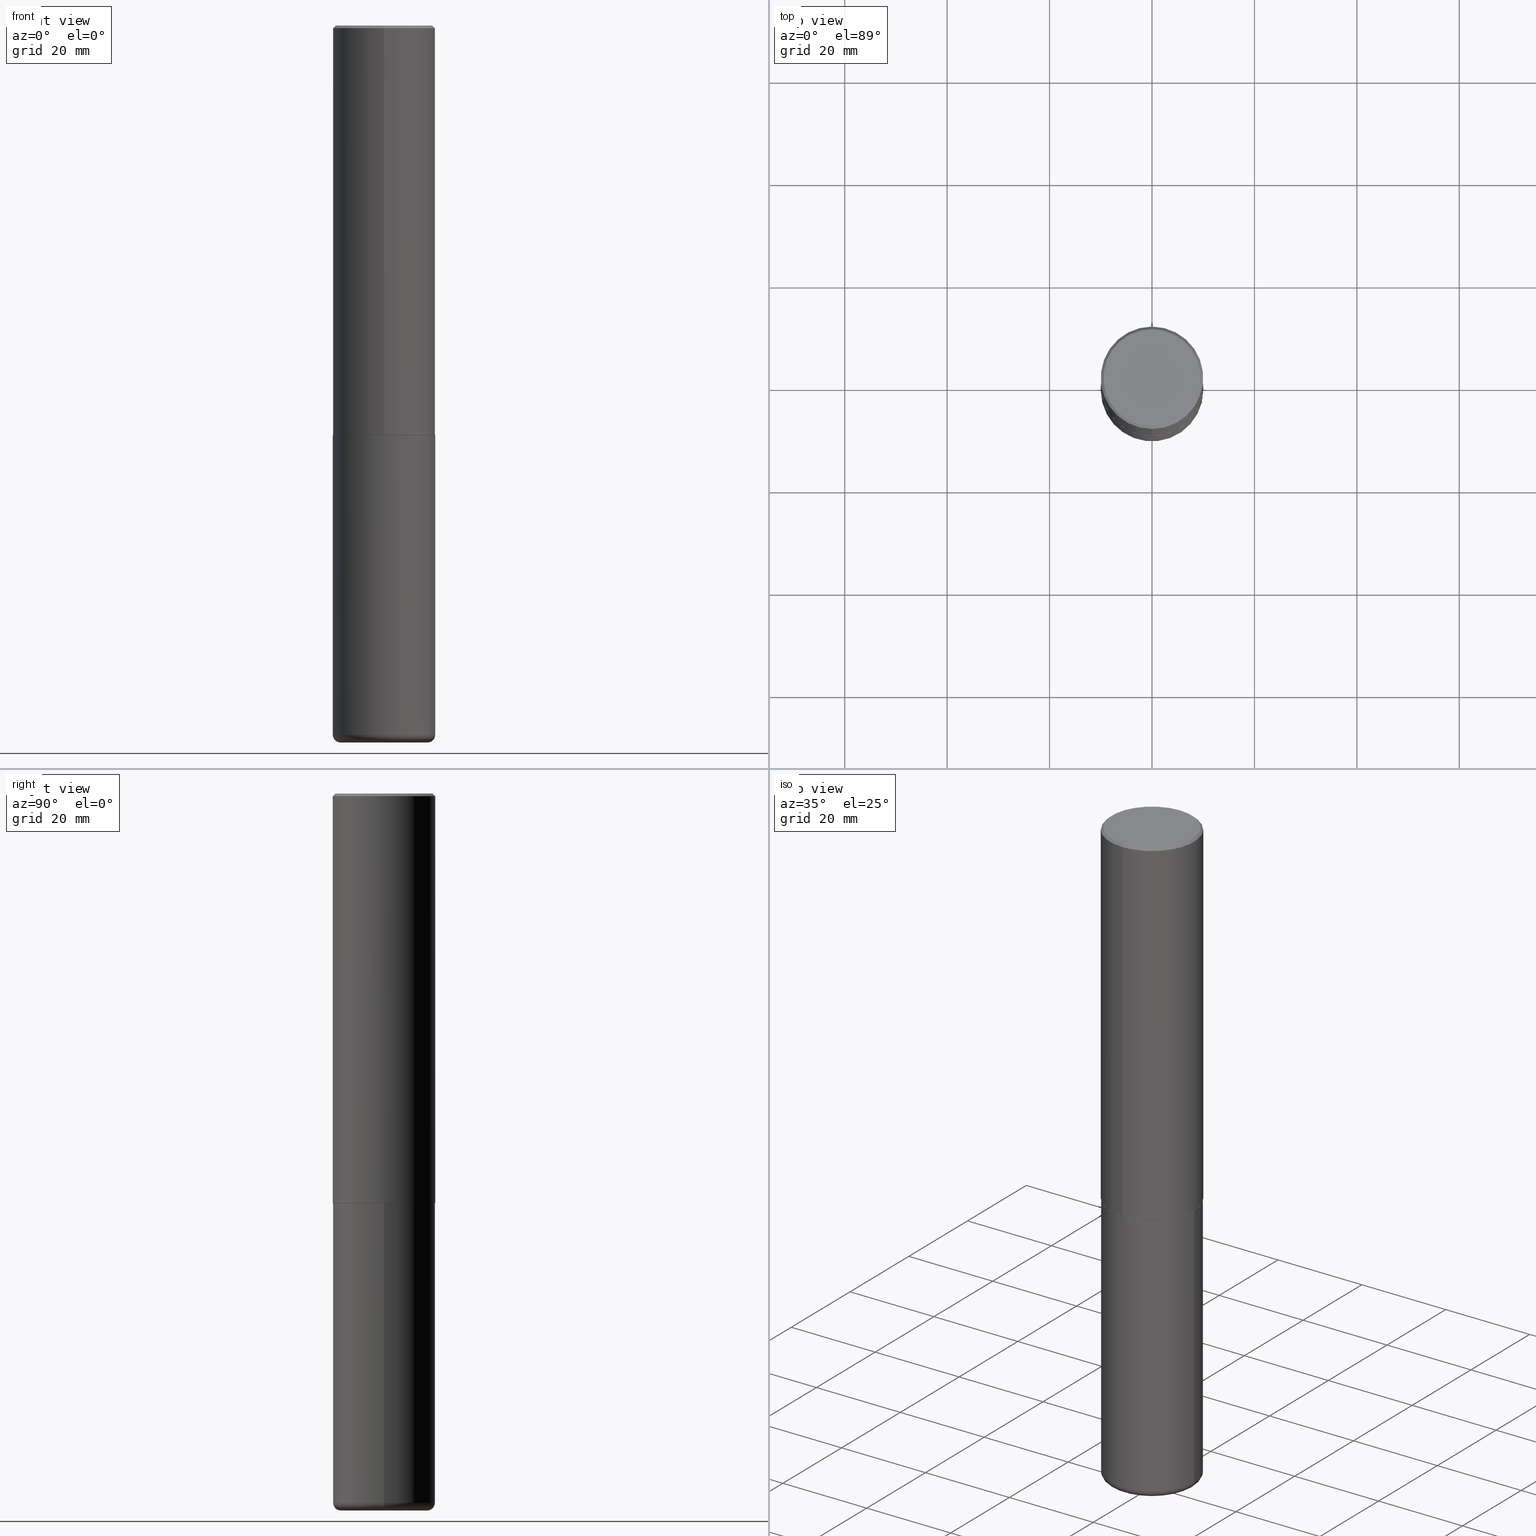
[diagram: canonical four-view strip — front | top / right | iso, engineering-drawing reading convention]
A machine part, canonical four-view strip (front | top / right | iso — engineering-drawing reading convention). The complete STEP part file that produces these views, byte-faithful:
ISO-10303-21;
HEADER;
FILE_DESCRIPTION (( 'STEP AP203' ),
    '1' );
FILE_NAME ('47589.STEP',
    '2024-03-06T19:41:54',
    ( '' ),
    ( '' ),
    'SwSTEP 2.0',
    'SolidWorks 2023',
    '' );
FILE_SCHEMA (( 'CONFIG_CONTROL_DESIGN' ));
ENDSEC;

DATA;
#1 = LINE ( 'NONE', #126, #356 ) ;
#2 = APPROVAL ( #5, 'UNSPECIFIED' ) ;
#3 = PLANE ( 'NONE',  #313 ) ;
#4 = EDGE_LOOP ( 'NONE', ( #366, #401, #348, #192 ) ) ;
#5 = APPROVAL_STATUS ( 'not_yet_approved' ) ;
#6 = ORIENTED_EDGE ( 'NONE', *, *, #282, .T. ) ;
#7 = ADVANCED_FACE ( 'NONE', ( #215 ), #346, .T. ) ;
#8 = CARTESIAN_POINT ( 'NONE',  ( 0.000000000000000000, 0.000000000000000000, 0.000000000000000000 ) ) ;
#9 = ORIENTED_EDGE ( 'NONE', *, *, #282, .F. ) ;
#10 = PERSON_AND_ORGANIZATION_ROLE ( 'creator' ) ;
#11 = ORIENTED_EDGE ( 'NONE', *, *, #408, .F. ) ;
#12 = APPROVAL_STATUS ( 'not_yet_approved' ) ;
#13 = APPLICATION_PROTOCOL_DEFINITION ( 'international standard', 'config_control_design', 1994, #37 ) ;
#14 = CYLINDRICAL_SURFACE ( 'NONE', #323, 0.3936999999999999389 ) ;
#15 = CONICAL_SURFACE ( 'NONE', #101, 0.3926999999999999380, 0.7853981633979947308 ) ;
#16 = APPLICATION_CONTEXT ( 'configuration controlled 3d designs of mechanical parts and assemblies' ) ;
#17 = LINE ( 'NONE', #79, #33 ) ;
#18 = CARTESIAN_POINT ( 'NONE',  ( 2.797406750687554229E-15, 0.3936999999999892808, -3.148600000000001398 ) ) ;
#19 = EDGE_CURVE ( 'NONE', #239, #225, #17, .T. ) ;
#20 = CARTESIAN_POINT ( 'NONE',  ( 4.895242379836416489E-31, -6.976798005662675704E-17, -0.02000000000000007327 ) ) ;
#21 = VECTOR ( 'NONE', #245, 39.37007874015748143 ) ;
#22 = AXIS2_PLACEMENT_3D ( 'NONE', #156, #309, #279 ) ;
#23 = LINE ( 'NONE', #281, #317 ) ;
#24 = ADVANCED_FACE ( 'NONE', ( #151 ), #343, .T. ) ;
#25 = CARTESIAN_POINT ( 'NONE',  ( 7.709027699766357669E-29, -1.098706149931754028E-14, -3.149599999999999067 ) ) ;
#26 = ADVANCED_FACE ( 'NONE', ( #73 ), #14, .T. ) ;
#27 = CARTESIAN_POINT ( 'NONE',  ( 0.3936999999999999389, -1.374596203102545395E-14, -3.149599999999999511 ) ) ;
#28 = CYLINDRICAL_SURFACE ( 'NONE', #402, 0.3936999999999999389 ) ;
#29 = FACE_OUTER_BOUND ( 'NONE', #44, .T. ) ;
#30 = DIRECTION ( 'NONE',  ( 1.000000000000000000, -6.982962677686266711E-15, 4.876176775795935793E-29 ) ) ;
#31 = EDGE_CURVE ( 'NONE', #46, #320, #360, .T. ) ;
#32 = EDGE_LOOP ( 'NONE', ( #332, #49 ) ) ;
#33 = VECTOR ( 'NONE', #235, 39.37007874015748143 ) ;
#34 = CARTESIAN_POINT ( 'NONE',  ( 1.333440775948569289E-28, -1.903800029631001838E-14, -5.452699999999999214 ) ) ;
#35 = DIMENSIONAL_EXPONENTS ( 1.000000000000000000, 0.000000000000000000, 0.000000000000000000, 0.000000000000000000, 0.000000000000000000, 0.000000000000000000, 0.000000000000000000 ) ;
#36 = CIRCLE ( 'NONE', #383, 0.3736999999999999211 ) ;
#37 = APPLICATION_CONTEXT ( 'configuration controlled 3d designs of mechanical parts and assemblies' ) ;
#38 = DIRECTION ( 'NONE',  ( -2.445468806185136597E-29, 3.491481338843145583E-15, 1.000000000000000000 ) ) ;
#39 = ORIENTED_EDGE ( 'NONE', *, *, #249, .T. ) ;
#40 = CARTESIAN_POINT ( 'NONE',  ( 0.000000000000000000, 0.000000000000000000, 0.000000000000000000 ) ) ;
#41 = CARTESIAN_POINT ( 'NONE',  ( 1.347893496593123646E-28, -1.924434684343564878E-14, -5.511800000000000033 ) ) ;
#42 = EDGE_LOOP ( 'NONE', ( #265, #396, #394, #102 ) ) ;
#43 = SECURITY_CLASSIFICATION_LEVEL ( 'unclassified' ) ;
#44 = EDGE_LOOP ( 'NONE', ( #188, #139 ) ) ;
#45 = AXIS2_PLACEMENT_3D ( 'NONE', #161, #288, #417 ) ;
#46 = VERTEX_POINT ( 'NONE', #331 ) ;
#47 = DESIGN_CONTEXT ( 'detailed design', #37, 'design' ) ;
#48 = APPROVAL_DATE_TIME ( #240, #2 ) ;
#49 = ORIENTED_EDGE ( 'NONE', *, *, #56, .F. ) ;
#50 = DIRECTION ( 'NONE',  ( 1.000000000000000000, -6.982962677686269866E-15, 0.000000000000000000 ) ) ;
#51 = FACE_OUTER_BOUND ( 'NONE', #32, .T. ) ;
#52 = MANIFOLD_SOLID_BREP ( 'Body-Move/Copy2[1]', #205 ) ;
#53 = CARTESIAN_POINT ( 'NONE',  ( 1.333440775948569289E-28, -1.903800029631001838E-14, -5.452699999999999214 ) ) ;
#54 = AXIS2_PLACEMENT_3D ( 'NONE', #248, #382, #413 ) ;
#55 = DIRECTION ( 'NONE',  ( 6.982962677686265133E-15, 1.000000000000000000, -3.491137977679279029E-15 ) ) ;
#56 = EDGE_CURVE ( 'NONE', #78, #92, #60, .T. ) ;
#57 = CARTESIAN_POINT ( 'NONE',  ( 7.709027699766357669E-29, -1.098706149931754028E-14, -3.149599999999999067 ) ) ;
#58 = DIRECTION ( 'NONE',  ( -2.447621189918199031E-29, 3.488399002831325748E-15, 1.000000000000000000 ) ) ;
#59 = ORIENTED_EDGE ( 'NONE', *, *, #176, .T. ) ;
#60 = CIRCLE ( 'NONE', #178, 0.3346000000000000085 ) ;
#61 = AXIS2_PLACEMENT_3D ( 'NONE', #20, #153, #376 ) ;
#62 = DIRECTION ( 'NONE',  ( -6.982962677686265133E-15, -1.000000000000000000, 3.488399002831325748E-15 ) ) ;
#63 = EDGE_LOOP ( 'NONE', ( #275, #163, #6, #201 ) ) ;
#64 = CC_DESIGN_DATE_AND_TIME_ASSIGNMENT ( #140, #369, ( #96 ) ) ;
#65 = DIRECTION ( 'NONE',  ( -2.447621189918199031E-29, 3.488399002831325748E-15, 1.000000000000000000 ) ) ;
#66 = PRODUCT_DEFINITION_SHAPE ( 'NONE', 'NONE',  #158 ) ;
#67 = DIRECTION ( 'NONE',  ( 2.447621189918199031E-29, -3.488399002831325748E-15, -1.000000000000000000 ) ) ;
#68 = EDGE_LOOP ( 'NONE', ( #59, #374 ) ) ;
#69 = DIRECTION ( 'NONE',  ( -2.447621189918198751E-29, 3.488399002831325748E-15, 1.000000000000000000 ) ) ;
#70 = CIRCLE ( 'NONE', #76, 0.3346000000000000085 ) ;
#71 = EDGE_CURVE ( 'NONE', #388, #172, #134, .T. ) ;
#72 = ORIENTED_EDGE ( 'NONE', *, *, #375, .F. ) ;
#73 = FACE_OUTER_BOUND ( 'NONE', #329, .T. ) ;
#74 = PERSON_AND_ORGANIZATION ( #409, #113 ) ;
#75 = AXIS2_PLACEMENT_3D ( 'NONE', #25, #80, #350 ) ;
#76 = AXIS2_PLACEMENT_3D ( 'NONE', #319, #321, #99 ) ;
#77 = EDGE_CURVE ( 'NONE', #46, #172, #184, .T. ) ;
#78 = VERTEX_POINT ( 'NONE', #89 ) ;
#79 = CARTESIAN_POINT ( 'NONE',  ( -2.742209443527319105E-15, -0.3927000000000109292, -3.149599999999997291 ) ) ;
#80 = DIRECTION ( 'NONE',  ( -2.447621189918199031E-29, 3.488399002831325748E-15, 1.000000000000000000 ) ) ;
#81 = APPROVAL ( #12, 'UNSPECIFIED' ) ;
#82 = AXIS2_PLACEMENT_3D ( 'NONE', #380, #244, #84 ) ;
#83 = CC_DESIGN_APPROVAL ( #2, ( #158 ) ) ;
#84 = DIRECTION ( 'NONE',  ( -6.982962677686265133E-15, -1.000000000000000000, 3.491137977679279029E-15 ) ) ;
#85 = DIRECTION ( 'NONE',  ( -6.982962677686265133E-15, -1.000000000000000000, 3.488399002831325748E-15 ) ) ;
#86 = CC_DESIGN_PERSON_AND_ORGANIZATION_ASSIGNMENT ( #300, #334, ( #327 ) ) ;
#87 = DIRECTION ( 'NONE',  ( 2.447621189918199031E-29, -3.488399002831325748E-15, -1.000000000000000000 ) ) ;
#88 = LOCAL_TIME ( 14, 41, 54.00000000000000000, #144 ) ;
#89 = CARTESIAN_POINT ( 'NONE',  ( -0.3346000000000000085, -1.655373219760243052E-14, -5.511800000000000033 ) ) ;
#90 = DIRECTION ( 'NONE',  ( -2.445468806185136597E-29, 3.491481338843145583E-15, 1.000000000000000000 ) ) ;
#91 = CARTESIAN_POINT ( 'NONE',  ( 7.702248551960704469E-29, -1.099676962482037073E-14, -3.149599999999999511 ) ) ;
#92 = VERTEX_POINT ( 'NONE', #314 ) ;
#93 = EDGE_CURVE ( 'NONE', #262, #239, #255, .T. ) ;
#94 = AXIS2_PLACEMENT_3D ( 'NONE', #212, #217, #180 ) ;
#95 = CARTESIAN_POINT ( 'NONE',  ( 2.749192406205084005E-15, 0.3937000000000000499, -0.02000000000000144718 ) ) ;
#96 = SECURITY_CLASSIFICATION ( '', '', #43 ) ;
#97 = PLANE ( 'NONE',  #170 ) ;
#98 = ADVANCED_FACE ( 'NONE', ( #310 ), #183, .T. ) ;
#99 = DIRECTION ( 'NONE',  ( 1.000000000000000000, -6.982962677686269866E-15, 0.000000000000000000 ) ) ;
#100 = PERSON_AND_ORGANIZATION ( #409, #113 ) ;
#101 = AXIS2_PLACEMENT_3D ( 'NONE', #250, #110, #182 ) ;
#102 = ORIENTED_EDGE ( 'NONE', *, *, #228, .T. ) ;
#103 = CALENDAR_DATE ( 2024, 6, 3 ) ;
#104 = EDGE_LOOP ( 'NONE', ( #166, #160, #269, #143 ) ) ;
#105 = LENGTH_MEASURE_WITH_UNIT ( LENGTH_MEASURE( 0.02539999999999999897 ), #362 );
#106 = LOCAL_TIME ( 14, 41, 54.00000000000000000, #268 ) ;
#107 = DATE_AND_TIME ( #365, #280 ) ;
#108 = PRODUCT_RELATED_PRODUCT_CATEGORY ( 'detail', '', ( #416 ) ) ;
#109 = CARTESIAN_POINT ( 'NONE',  ( 7.706580078576441267E-29, -1.098357310031471265E-14, -3.148600000000000065 ) ) ;
#110 = DIRECTION ( 'NONE',  ( -2.447621189918199031E-29, 3.488399002831325748E-15, 1.000000000000000000 ) ) ;
#111 = AXIS2_PLACEMENT_3D ( 'NONE', #347, #200, #335 ) ;
#112 = CIRCLE ( 'NONE', #352, 0.3936999999999999389 ) ;
#113 = ORGANIZATION ( 'UNSPECIFIED', 'UNSPECIFIED', '' ) ;
#114 = DIRECTION ( 'NONE',  ( 1.000000000000000000, -6.982962677686264344E-15, 4.883557194083112340E-29 ) ) ;
#115 = CARTESIAN_POINT ( 'NONE',  ( 2.793854037008791591E-15, 0.3926999999999889468, -3.149600000000000843 ) ) ;
#116 = APPROVAL ( #330, 'UNSPECIFIED' ) ;
#117 = ORIENTED_EDGE ( 'NONE', *, *, #364, .F. ) ;
#118 = DIRECTION ( 'NONE',  ( -6.982962677686265922E-15, -1.000000000000000000, 4.163344669033672479E-15 ) ) ;
#119 = CIRCLE ( 'NONE', #45, 0.3937000000000000499 ) ;
#120 = APPROVAL_PERSON_ORGANIZATION ( #342, #2, #135 ) ;
#121 = LINE ( 'NONE', #227, #226 ) ;
#122 = DIRECTION ( 'NONE',  ( -6.982962677686265922E-15, -1.000000000000000000, 3.488399002831325748E-15 ) ) ;
#123 = FACE_OUTER_BOUND ( 'NONE', #68, .T. ) ;
#124 = EDGE_LOOP ( 'NONE', ( #232, #399, #207, #128 ) ) ;
#125 = CIRCLE ( 'NONE', #377, 0.05910000000000019404 ) ;
#126 = CARTESIAN_POINT ( 'NONE',  ( 2.749192406205084005E-15, 0.3937000000000000499, -0.02000000000000144718 ) ) ;
#127 = AXIS2_PLACEMENT_3D ( 'NONE', #40, #174, #345 ) ;
#128 = ORIENTED_EDGE ( 'NONE', *, *, #228, .F. ) ;
#129 = EDGE_CURVE ( 'NONE', #223, #392, #371, .T. ) ;
#130 = DIRECTION ( 'NONE',  ( 1.000000000000000000, -6.982962677686264344E-15, 4.883557194083112340E-29 ) ) ;
#131 = VERTEX_POINT ( 'NONE', #407 ) ;
#132 = CALENDAR_DATE ( 2024, 6, 3 ) ;
#133 = ORIENTED_EDGE ( 'NONE', *, *, #221, .F. ) ;
#134 = CIRCLE ( 'NONE', #94, 0.3936999999999999389 ) ;
#135 = APPROVAL_ROLE ( '' ) ;
#136 = CIRCLE ( 'NONE', #242, 0.3736999999999999211 ) ;
#137 = DIRECTION ( 'NONE',  ( -2.445468806185136597E-29, 3.491481338843145583E-15, 1.000000000000000000 ) ) ;
#138 = CONICAL_SURFACE ( 'NONE', #196, 0.3926999999999999380, 0.7853981633979947308 ) ;
#139 = ORIENTED_EDGE ( 'NONE', *, *, #71, .T. ) ;
#140 = DATE_AND_TIME ( #243, #106 ) ;
#141 = CC_DESIGN_PERSON_AND_ORGANIZATION_ASSIGNMENT ( #208, #299, ( #416 ) ) ;
#142 = APPROVAL_ROLE ( '' ) ;
#143 = ORIENTED_EDGE ( 'NONE', *, *, #209, .F. ) ;
#144 = COORDINATED_UNIVERSAL_TIME_OFFSET ( 5, 0, .BEHIND. ) ;
#145 = DIRECTION ( 'NONE',  ( -2.445468806185136597E-29, 3.491481338843145583E-15, 1.000000000000000000 ) ) ;
#146 = TOROIDAL_SURFACE ( 'NONE', #338, 0.3346000000000000085, 0.05910000000000022874 ) ;
#147 = EDGE_LOOP ( 'NONE', ( #117, #179, #211, #405 ) ) ;
#148 = LOCAL_TIME ( 14, 41, 54.00000000000000000, #276 ) ;
#149 = EDGE_CURVE ( 'NONE', #167, #225, #272, .T. ) ;
#150 = DATE_AND_TIME ( #311, #148 ) ;
#151 = FACE_OUTER_BOUND ( 'NONE', #124, .T. ) ;
#152 = DIRECTION ( 'NONE',  ( -2.447621189918199031E-29, 3.488399002831325748E-15, 1.000000000000000000 ) ) ;
#153 = DIRECTION ( 'NONE',  ( 2.447621189918199031E-29, -3.488399002831325748E-15, -1.000000000000000000 ) ) ;
#154 = PLANE ( 'NONE',  #397 ) ;
#155 = ADVANCED_FACE ( 'NONE', ( #51 ), #154, .T. ) ;
#156 = CARTESIAN_POINT ( 'NONE',  ( 4.895242379836416489E-31, -6.976798005662675704E-17, -0.02000000000000007327 ) ) ;
#157 = DIRECTION ( 'NONE',  ( -2.447621189918198751E-29, 3.488399002831325748E-15, 1.000000000000000000 ) ) ;
#158 = PRODUCT_DEFINITION ( 'UNKNOWN', '', #327, #47 ) ;
#159 = LINE ( 'NONE', #354, #189 ) ;
#160 = ORIENTED_EDGE ( 'NONE', *, *, #289, .T. ) ;
#161 = CARTESIAN_POINT ( 'NONE',  ( 1.333440775948569289E-28, -1.903800029631001838E-14, -5.452699999999999214 ) ) ;
#162 = PLANE ( 'NONE',  #361 ) ;
#163 = ORIENTED_EDGE ( 'NONE', *, *, #56, .T. ) ;
#164 = DIRECTION ( 'NONE',  ( 4.937700262164542520E-15, 0.7071067811865443531, -0.7071067811865506814 ) ) ;
#165 = CARTESIAN_POINT ( 'NONE',  ( -0.3937000000000001054, -1.624059354562250123E-14, -5.452699999999999214 ) ) ;
#166 = ORIENTED_EDGE ( 'NONE', *, *, #293, .T. ) ;
#167 = VERTEX_POINT ( 'NONE', #18 ) ;
#168 = CC_DESIGN_PERSON_AND_ORGANIZATION_ASSIGNMENT ( #100, #264, ( #158 ) ) ;
#169 = PERSON_AND_ORGANIZATION ( #409, #113 ) ;
#170 = AXIS2_PLACEMENT_3D ( 'NONE', #385, #58, #122 ) ;
#171 = CC_DESIGN_SECURITY_CLASSIFICATION ( #96, ( #327 ) ) ;
#172 = VERTEX_POINT ( 'NONE', #27 ) ;
#173 = APPROVAL_DATE_TIME ( #107, #116 ) ;
#174 = DIRECTION ( 'NONE',  ( 0.000000000000000000, 0.000000000000000000, 1.000000000000000000 ) ) ;
#175 = DIRECTION ( 'NONE',  ( -2.447621189918199031E-29, 3.488399002831325748E-15, 1.000000000000000000 ) ) ;
#176 = EDGE_CURVE ( 'NONE', #131, #418, #136, .T. ) ;
#177 = SHAPE_DEFINITION_REPRESENTATION ( #66, #368 ) ;
#178 = AXIS2_PLACEMENT_3D ( 'NONE', #41, #137, #50 ) ;
#179 = ORIENTED_EDGE ( 'NONE', *, *, #93, .T. ) ;
#180 = DIRECTION ( 'NONE',  ( 1.000000000000000000, -6.982962677686269866E-15, 0.000000000000000000 ) ) ;
#181 = FACE_OUTER_BOUND ( 'NONE', #42, .T. ) ;
#182 = DIRECTION ( 'NONE',  ( -6.982962677686265133E-15, -1.000000000000000000, 4.173946514383901751E-15 ) ) ;
#183 = CONICAL_SURFACE ( 'NONE', #390, 0.3937000000000001054, 0.7853981633974472798 ) ;
#184 = LINE ( 'NONE', #213, #21 ) ;
#185 = DIRECTION ( 'NONE',  ( -6.982962677686265133E-15, -1.000000000000000000, 4.173946514383901751E-15 ) ) ;
#186 = UNCERTAINTY_MEASURE_WITH_UNIT (LENGTH_MEASURE( 1.000000000000000082E-05 ), #395, 'distance_accuracy_value', 'NONE');
#187 = DIRECTION ( 'NONE',  ( 2.438088387897960049E-29, -3.491481338843145188E-15, -1.000000000000000000 ) ) ;
#188 = ORIENTED_EDGE ( 'NONE', *, *, #307, .T. ) ;
#189 = VECTOR ( 'NONE', #69, 39.37007874015748143 ) ;
#190 = APPROVAL_PERSON_ORGANIZATION ( #74, #81, #142 ) ;
#191 = DIRECTION ( 'NONE',  ( 5.024295867790807626E-15, 0.7071067811869363728, 0.7071067811861586616 ) ) ;
#192 = ORIENTED_EDGE ( 'NONE', *, *, #71, .F. ) ;
#193 = DIRECTION ( 'NONE',  ( -6.982962677686265133E-15, -1.000000000000000000, 4.173946514383901751E-15 ) ) ;
#194 = ADVANCED_FACE ( 'NONE', ( #353 ), #146, .T. ) ;
#195 = ORIENTED_EDGE ( 'NONE', *, *, #364, .T. ) ;
#196 = AXIS2_PLACEMENT_3D ( 'NONE', #357, #65, #193 ) ;
#197 = CARTESIAN_POINT ( 'NONE',  ( 0.3346000000000000085, -2.137449960826384395E-14, -5.452699999999999214 ) ) ;
#198 = ORIENTED_EDGE ( 'NONE', *, *, #19, .F. ) ;
#199 = COORDINATED_UNIVERSAL_TIME_OFFSET ( 5, 0, .BEHIND. ) ;
#200 = DIRECTION ( 'NONE',  ( -2.445468806185136597E-29, 3.491481338843145583E-15, 1.000000000000000000 ) ) ;
#201 = ORIENTED_EDGE ( 'NONE', *, *, #381, .F. ) ;
#202 = DIRECTION ( 'NONE',  ( -2.447621189918199031E-29, 3.488399002831325748E-15, 1.000000000000000000 ) ) ;
#203 = PERSON_AND_ORGANIZATION ( #409, #113 ) ;
#204 = EDGE_LOOP ( 'NONE', ( #133, #260 ) ) ;
#205 = CLOSED_SHELL ( 'NONE', ( #26, #412, #277, #324, #194, #155 ) ) ;
#206 = COORDINATED_UNIVERSAL_TIME_OFFSET ( 5, 0, .BEHIND. ) ;
#207 = ORIENTED_EDGE ( 'NONE', *, *, #209, .T. ) ;
#208 = PERSON_AND_ORGANIZATION ( #409, #113 ) ;
#209 = EDGE_CURVE ( 'NONE', #225, #223, #406, .T. ) ;
#210 = DIRECTION ( 'NONE',  ( -6.982962677686265922E-15, -1.000000000000000000, 3.488399002831326143E-15 ) ) ;
#211 = ORIENTED_EDGE ( 'NONE', *, *, #19, .T. ) ;
#212 = CARTESIAN_POINT ( 'NONE',  ( 7.702248551960704469E-29, -1.099676962482037073E-14, -3.149599999999999511 ) ) ;
#213 = CARTESIAN_POINT ( 'NONE',  ( 0.3936999999999999389, -2.749192406205082822E-15, 1.919750796630859611E-29 ) ) ;
#214 = ADVANCED_FACE ( 'NONE', ( #411 ), #15, .T. ) ;
#215 = FACE_OUTER_BOUND ( 'NONE', #104, .T. ) ;
#216 = CARTESIAN_POINT ( 'NONE',  ( -2.742209443527319105E-15, -0.3927000000000109292, -3.149599999999997291 ) ) ;
#217 = DIRECTION ( 'NONE',  ( -2.445468806185136597E-29, 3.491481338843145583E-15, 1.000000000000000000 ) ) ;
#218 = CLOSED_SHELL ( 'NONE', ( #214, #7, #98, #236, #24, #403, #333, #386 ) ) ;
#219 = VECTOR ( 'NONE', #252, 39.37007874015748143 ) ;
#220 = CARTESIAN_POINT ( 'NONE',  ( 1.347893496593123646E-28, -1.924434684343564878E-14, -5.511800000000000033 ) ) ;
#221 = EDGE_CURVE ( 'NONE', #239, #262, #246, .T. ) ;
#222 = CARTESIAN_POINT ( 'NONE',  ( -4.046410242946616737E-45, 5.767025352895066351E-31, 1.653201181462990183E-16 ) ) ;
#223 = VERTEX_POINT ( 'NONE', #315 ) ;
#224 = CARTESIAN_POINT ( 'NONE',  ( -0.3936999999999999389, 2.797406750687513998E-15, -1.936584745033356455E-29 ) ) ;
#225 = VERTEX_POINT ( 'NONE', #379 ) ;
#226 = VECTOR ( 'NONE', #191, 39.37007874015748143 ) ;
#227 = CARTESIAN_POINT ( 'NONE',  ( 2.790301323329989903E-15, 0.3926999999999889468, -3.149600000000000843 ) ) ;
#228 = EDGE_CURVE ( 'NONE', #392, #223, #233, .T. ) ;
#229 = CARTESIAN_POINT ( 'NONE',  ( 7.702248551960704469E-29, -1.099676962482037073E-14, -3.149599999999999511 ) ) ;
#230 = EDGE_LOOP ( 'NONE', ( #344, #195, #291, #198 ) ) ;
#231 = FACE_OUTER_BOUND ( 'NONE', #4, .T. ) ;
#232 = ORIENTED_EDGE ( 'NONE', *, *, #289, .F. ) ;
#233 = CIRCLE ( 'NONE', #82, 0.3937000000000001054 ) ;
#234 = CC_DESIGN_APPROVAL ( #116, ( #327 ) ) ;
#235 = DIRECTION ( 'NONE',  ( -4.937700262167245946E-15, -0.7071067811869314879, 0.7071067811861635466 ) ) ;
#236 = ADVANCED_FACE ( 'NONE', ( #181 ), #263, .T. ) ;
#237 = ORIENTED_EDGE ( 'NONE', *, *, #367, .T. ) ;
#238 = APPROVAL_ROLE ( '' ) ;
#239 = VERTEX_POINT ( 'NONE', #216 ) ;
#240 = DATE_AND_TIME ( #132, #378 ) ;
#241 = ORIENTED_EDGE ( 'NONE', *, *, #31, .T. ) ;
#242 = AXIS2_PLACEMENT_3D ( 'NONE', #351, #152, #85 ) ;
#243 = CALENDAR_DATE ( 2024, 6, 3 ) ;
#244 = DIRECTION ( 'NONE',  ( -2.447621189918199031E-29, 3.488399002831325748E-15, 1.000000000000000000 ) ) ;
#245 = DIRECTION ( 'NONE',  ( -2.445468806185136877E-29, 3.491481338843145188E-15, 1.000000000000000000 ) ) ;
#246 = CIRCLE ( 'NONE', #257, 0.3926999999999999380 ) ;
#247 = CARTESIAN_POINT ( 'NONE',  ( -2.749192406205084400E-15, -0.3937000000000002164, 1.373382687414693916E-15 ) ) ;
#248 = CARTESIAN_POINT ( 'NONE',  ( -0.3346000000000000085, -1.666052430245672310E-14, -5.452699999999999214 ) ) ;
#249 = EDGE_CURVE ( 'NONE', #418, #223, #23, .T. ) ;
#250 = CARTESIAN_POINT ( 'NONE',  ( 7.709027699766357669E-29, -1.098706149931754028E-14, -3.149599999999999067 ) ) ;
#251 = CIRCLE ( 'NONE', #54, 0.05910000000000019404 ) ;
#252 = DIRECTION ( 'NONE',  ( -2.445468806185136877E-29, 3.491481338843145188E-15, 1.000000000000000000 ) ) ;
#253 = DIRECTION ( 'NONE',  ( -6.982962677686266711E-15, -1.000000000000000000, 3.491481338843145583E-15 ) ) ;
#254 = CARTESIAN_POINT ( 'NONE',  ( 2.609533152651356620E-15, 0.3736999999999999211, -1.220954648284916602E-15 ) ) ;
#255 = CIRCLE ( 'NONE', #75, 0.3926999999999999380 ) ;
#256 = CC_DESIGN_DATE_AND_TIME_ASSIGNMENT ( #273, #340, ( #158 ) ) ;
#257 = AXIS2_PLACEMENT_3D ( 'NONE', #57, #284, #185 ) ;
#258 = FACE_OUTER_BOUND ( 'NONE', #341, .T. ) ;
#259 = DIRECTION ( 'NONE',  ( 1.000000000000000000, -6.982962677686239100E-15, 0.000000000000000000 ) ) ;
#260 = ORIENTED_EDGE ( 'NONE', *, *, #93, .F. ) ;
#261 = CC_DESIGN_PERSON_AND_ORGANIZATION_ASSIGNMENT ( #169, #266, ( #96 ) ) ;
#262 = VERTEX_POINT ( 'NONE', #115 ) ;
#263 = CONICAL_SURFACE ( 'NONE', #61, 0.3937000000000001054, 0.7853981633974472798 ) ;
#264 = PERSON_AND_ORGANIZATION_ROLE ( 'creator' ) ;
#265 = ORIENTED_EDGE ( 'NONE', *, *, #249, .F. ) ;
#266 = PERSON_AND_ORGANIZATION_ROLE ( 'classification_officer' ) ;
#267 = EDGE_CURVE ( 'NONE', #78, #320, #251, .T. ) ;
#268 = COORDINATED_UNIVERSAL_TIME_OFFSET ( 5, 0, .BEHIND. ) ;
#269 = ORIENTED_EDGE ( 'NONE', *, *, #129, .F. ) ;
#270 = EDGE_CURVE ( 'NONE', #92, #78, #70, .T. ) ;
#271 = AXIS2_PLACEMENT_3D ( 'NONE', #296, #202, #210 ) ;
#272 = CIRCLE ( 'NONE', #325, 0.3937000000000002720 ) ;
#273 = DATE_AND_TIME ( #103, #88 ) ;
#274 = DIRECTION ( 'NONE',  ( 1.000000000000000000, -6.982962677686266711E-15, 4.876176775795935793E-29 ) ) ;
#275 = ORIENTED_EDGE ( 'NONE', *, *, #267, .F. ) ;
#276 = COORDINATED_UNIVERSAL_TIME_OFFSET ( 5, 0, .BEHIND. ) ;
#277 = ADVANCED_FACE ( 'NONE', ( #29 ), #3, .F. ) ;
#278 = DIRECTION ( 'NONE',  ( 2.438088387897960049E-29, -3.491481338843145188E-15, -1.000000000000000000 ) ) ;
#279 = DIRECTION ( 'NONE',  ( -6.982962677686265133E-15, -1.000000000000000000, 3.491137977679279029E-15 ) ) ;
#280 = LOCAL_TIME ( 14, 41, 54.00000000000000000, #206 ) ;
#281 = CARTESIAN_POINT ( 'NONE',  ( -2.700978061722651647E-15, -0.3937000000000001609, -0.01999999999999869937 ) ) ;
#282 = EDGE_CURVE ( 'NONE', #92, #46, #125, .T. ) ;
#283 = DIRECTION ( 'NONE',  ( -2.447621189918199031E-29, 3.488399002831325748E-15, 1.000000000000000000 ) ) ;
#284 = DIRECTION ( 'NONE',  ( -2.447621189918199031E-29, 3.488399002831325748E-15, 1.000000000000000000 ) ) ;
#285 = VECTOR ( 'NONE', #157, 39.37007874015748143 ) ;
#286 = FACE_OUTER_BOUND ( 'NONE', #204, .T. ) ;
#287 = EDGE_LOOP ( 'NONE', ( #72, #39, #370, #11 ) ) ;
#288 = DIRECTION ( 'NONE',  ( -2.445468806185136597E-29, 3.491481338843145583E-15, 1.000000000000000000 ) ) ;
#289 = EDGE_CURVE ( 'NONE', #167, #392, #159, .T. ) ;
#290 = DIRECTION ( 'NONE',  ( 6.982962677686265922E-15, 1.000000000000000000, -3.488399002831325748E-15 ) ) ;
#291 = ORIENTED_EDGE ( 'NONE', *, *, #293, .F. ) ;
#292 = DIRECTION ( 'NONE',  ( -2.445468806185136597E-29, 3.491481338843145583E-15, 1.000000000000000000 ) ) ;
#293 = EDGE_CURVE ( 'NONE', #225, #167, #372, .T. ) ;
#294 = MECHANICAL_CONTEXT ( 'NONE', #16, 'mechanical' ) ;
#295 = ORIENTED_EDGE ( 'NONE', *, *, #267, .T. ) ;
#296 = CARTESIAN_POINT ( 'NONE',  ( 0.000000000000000000, 0.000000000000000000, 0.000000000000000000 ) ) ;
#297 =( NAMED_UNIT ( * ) SI_UNIT ( $, .STERADIAN. ) SOLID_ANGLE_UNIT ( ) );
#298 = AXIS2_PLACEMENT_3D ( 'NONE', #328, #387, #393 ) ;
#299 = PERSON_AND_ORGANIZATION_ROLE ( 'design_owner' ) ;
#300 = PERSON_AND_ORGANIZATION ( #409, #113 ) ;
#301 = CC_DESIGN_PERSON_AND_ORGANIZATION_ASSIGNMENT ( #203, #10, ( #327 ) ) ;
#302 = ORIENTED_EDGE ( 'NONE', *, *, #270, .T. ) ;
#303 = DIRECTION ( 'NONE',  ( -6.982962677686265922E-15, -1.000000000000000000, 3.488399002831326143E-15 ) ) ;
#304 = AXIS2_PLACEMENT_3D ( 'NONE', #363, #175, #303 ) ;
#305 =( GEOMETRIC_REPRESENTATION_CONTEXT ( 3 ) GLOBAL_UNCERTAINTY_ASSIGNED_CONTEXT ( ( #186 ) ) GLOBAL_UNIT_ASSIGNED_CONTEXT ( ( #395, #398, #297 ) ) REPRESENTATION_CONTEXT ( 'NONE', 'WORKASPACE' ) );
#306 = ORIENTED_EDGE ( 'NONE', *, *, #31, .F. ) ;
#307 = EDGE_CURVE ( 'NONE', #172, #388, #112, .T. ) ;
#308 = APPROVAL_DATE_TIME ( #150, #81 ) ;
#309 = DIRECTION ( 'NONE',  ( -2.447621189918199031E-29, 3.488399002831325748E-15, 1.000000000000000000 ) ) ;
#310 = FACE_OUTER_BOUND ( 'NONE', #287, .T. ) ;
#311 = CALENDAR_DATE ( 2024, 6, 3 ) ;
#312 = DIRECTION ( 'NONE',  ( -2.445468806185136597E-29, 3.491481338843145583E-15, 1.000000000000000000 ) ) ;
#313 = AXIS2_PLACEMENT_3D ( 'NONE', #91, #187, #316 ) ;
#314 = CARTESIAN_POINT ( 'NONE',  ( 0.3346000000000000085, -2.158084615538947435E-14, -5.511800000000000033 ) ) ;
#315 = CARTESIAN_POINT ( 'NONE',  ( -2.700978061722651647E-15, -0.3937000000000001609, -0.01999999999999869937 ) ) ;
#316 = DIRECTION ( 'NONE',  ( -1.000000000000000000, 6.982962677686265922E-15, -4.876176775795935793E-29 ) ) ;
#317 = VECTOR ( 'NONE', #410, 39.37007874015748143 ) ;
#318 = ORIENTED_EDGE ( 'NONE', *, *, #77, .F. ) ;
#319 = CARTESIAN_POINT ( 'NONE',  ( 1.347893496593123646E-28, -1.924434684343564878E-14, -5.511800000000000033 ) ) ;
#320 = VERTEX_POINT ( 'NONE', #165 ) ;
#321 = DIRECTION ( 'NONE',  ( -2.445468806185136597E-29, 3.491481338843145583E-15, 1.000000000000000000 ) ) ;
#322 = CARTESIAN_POINT ( 'NONE',  ( -2.632373081744936315E-15, -0.3736999999999999211, 1.468934825504365031E-15 ) ) ;
#323 = AXIS2_PLACEMENT_3D ( 'NONE', #8, #145, #274 ) ;
#324 = ADVANCED_FACE ( 'NONE', ( #231 ), #28, .T. ) ;
#325 = AXIS2_PLACEMENT_3D ( 'NONE', #109, #283, #118 ) ;
#326 = AXIS2_PLACEMENT_3D ( 'NONE', #34, #292, #130 ) ;
#327 = PRODUCT_DEFINITION_FORMATION_WITH_SPECIFIED_SOURCE ( 'ANY', '', #416, .NOT_KNOWN. ) ;
#328 = CARTESIAN_POINT ( 'NONE',  ( 7.706580078576441267E-29, -1.098357310031471265E-14, -3.148600000000000065 ) ) ;
#329 = EDGE_LOOP ( 'NONE', ( #241, #237, #336, #318 ) ) ;
#330 = APPROVAL_STATUS ( 'not_yet_approved' ) ;
#331 = CARTESIAN_POINT ( 'NONE',  ( 0.3937000000000001054, -2.178719270251510160E-14, -5.452699999999999214 ) ) ;
#332 = ORIENTED_EDGE ( 'NONE', *, *, #270, .F. ) ;
#333 = ADVANCED_FACE ( 'NONE', ( #286 ), #97, .F. ) ;
#334 = PERSON_AND_ORGANIZATION_ROLE ( 'design_supplier' ) ;
#335 = DIRECTION ( 'NONE',  ( 1.000000000000000000, -6.982962677686267499E-15, 0.000000000000000000 ) ) ;
#336 = ORIENTED_EDGE ( 'NONE', *, *, #307, .F. ) ;
#337 = MANIFOLD_SOLID_BREP ( 'Body-Move/Copy2[2]', #218 ) ;
#338 = AXIS2_PLACEMENT_3D ( 'NONE', #53, #312, #114 ) ;
#339 = APPROVAL_PERSON_ORGANIZATION ( #404, #116, #238 ) ;
#340 = DATE_TIME_ROLE ( 'creation_date' ) ;
#341 = EDGE_LOOP ( 'NONE', ( #302, #295, #306, #9 ) ) ;
#342 = PERSON_AND_ORGANIZATION ( #409, #113 ) ;
#343 = CYLINDRICAL_SURFACE ( 'NONE', #304, 0.3937000000000002164 ) ;
#344 = ORIENTED_EDGE ( 'NONE', *, *, #221, .T. ) ;
#345 = DIRECTION ( 'NONE',  ( 1.000000000000000000, 0.000000000000000000, 0.000000000000000000 ) ) ;
#346 = CYLINDRICAL_SURFACE ( 'NONE', #271, 0.3937000000000002164 ) ;
#347 = CARTESIAN_POINT ( 'NONE',  ( 1.333440775948569289E-28, -1.903800029631001838E-14, -5.452699999999999214 ) ) ;
#348 = ORIENTED_EDGE ( 'NONE', *, *, #77, .T. ) ;
#349 = DIRECTION ( 'NONE',  ( -1.000000000000000000, 6.982962677686265922E-15, -4.876176775795935793E-29 ) ) ;
#350 = DIRECTION ( 'NONE',  ( -6.982962677686265133E-15, -1.000000000000000000, 4.173946514383901751E-15 ) ) ;
#351 = CARTESIAN_POINT ( 'NONE',  ( -4.046410242946616737E-45, 5.767025352895066351E-31, 1.653201181462990183E-16 ) ) ;
#352 = AXIS2_PLACEMENT_3D ( 'NONE', #229, #38, #358 ) ;
#353 = FACE_OUTER_BOUND ( 'NONE', #63, .T. ) ;
#354 = CARTESIAN_POINT ( 'NONE',  ( 2.797406750687515575E-15, 0.3937000000000002164, -1.373382687414693916E-15 ) ) ;
#355 = DIRECTION ( 'NONE',  ( -2.447621189918199031E-29, 3.488399002831325748E-15, 1.000000000000000000 ) ) ;
#356 = VECTOR ( 'NONE', #164, 39.37007874015748143 ) ;
#357 = CARTESIAN_POINT ( 'NONE',  ( 7.709027699766357669E-29, -1.098706149931754028E-14, -3.149599999999999067 ) ) ;
#358 = DIRECTION ( 'NONE',  ( 1.000000000000000000, -6.982962677686269866E-15, 0.000000000000000000 ) ) ;
#359 = LINE ( 'NONE', #224, #219 ) ;
#360 = CIRCLE ( 'NONE', #111, 0.3937000000000000499 ) ;
#361 = AXIS2_PLACEMENT_3D ( 'NONE', #254, #67, #290 ) ;
#362 =( LENGTH_UNIT ( ) NAMED_UNIT ( * ) SI_UNIT ( $, .METRE. ) );
#363 = CARTESIAN_POINT ( 'NONE',  ( 0.000000000000000000, 0.000000000000000000, 0.000000000000000000 ) ) ;
#364 = EDGE_CURVE ( 'NONE', #262, #167, #121, .T. ) ;
#365 = CALENDAR_DATE ( 2024, 6, 3 ) ;
#366 = ORIENTED_EDGE ( 'NONE', *, *, #367, .F. ) ;
#367 = EDGE_CURVE ( 'NONE', #320, #388, #359, .T. ) ;
#368 = ADVANCED_BREP_SHAPE_REPRESENTATION ( '47589', ( #52, #337, #127 ), #305 ) ;
#369 = DATE_TIME_ROLE ( 'classification_date' ) ;
#370 = ORIENTED_EDGE ( 'NONE', *, *, #129, .T. ) ;
#371 = CIRCLE ( 'NONE', #22, 0.3937000000000001054 ) ;
#372 = CIRCLE ( 'NONE', #298, 0.3937000000000002720 ) ;
#373 = CC_DESIGN_APPROVAL ( #81, ( #96 ) ) ;
#374 = ORIENTED_EDGE ( 'NONE', *, *, #375, .T. ) ;
#375 = EDGE_CURVE ( 'NONE', #418, #131, #36, .T. ) ;
#376 = DIRECTION ( 'NONE',  ( 6.982962677686265133E-15, 1.000000000000000000, -3.491137977679279029E-15 ) ) ;
#377 = AXIS2_PLACEMENT_3D ( 'NONE', #197, #253, #259 ) ;
#378 = LOCAL_TIME ( 14, 41, 54.00000000000000000, #199 ) ;
#379 = CARTESIAN_POINT ( 'NONE',  ( -2.749192406205007880E-15, -0.3937000000000113187, -3.148599999999998289 ) ) ;
#380 = CARTESIAN_POINT ( 'NONE',  ( 4.895242379836416489E-31, -6.976798005662675704E-17, -0.02000000000000007327 ) ) ;
#381 = EDGE_CURVE ( 'NONE', #320, #46, #119, .T. ) ;
#382 = DIRECTION ( 'NONE',  ( 7.105427357601001859E-15, 1.000000000000000000, -3.491481338843145583E-15 ) ) ;
#383 = AXIS2_PLACEMENT_3D ( 'NONE', #222, #355, #62 ) ;
#384 = CARTESIAN_POINT ( 'NONE',  ( 4.895242379836416489E-31, -6.976798005662675704E-17, -0.02000000000000007327 ) ) ;
#385 = CARTESIAN_POINT ( 'NONE',  ( 7.709027699766358790E-29, -1.098706149931754344E-14, -3.149599999999999511 ) ) ;
#386 = ADVANCED_FACE ( 'NONE', ( #123 ), #162, .F. ) ;
#387 = DIRECTION ( 'NONE',  ( -2.447621189918199031E-29, 3.488399002831325748E-15, 1.000000000000000000 ) ) ;
#388 = VERTEX_POINT ( 'NONE', #389 ) ;
#389 = CARTESIAN_POINT ( 'NONE',  ( -0.3936999999999999389, -1.221997820987768056E-14, -3.149599999999999511 ) ) ;
#390 = AXIS2_PLACEMENT_3D ( 'NONE', #384, #87, #55 ) ;
#391 = FACE_OUTER_BOUND ( 'NONE', #147, .T. ) ;
#392 = VERTEX_POINT ( 'NONE', #95 ) ;
#393 = DIRECTION ( 'NONE',  ( -6.982962677686265922E-15, -1.000000000000000000, 4.163344669033672479E-15 ) ) ;
#394 = ORIENTED_EDGE ( 'NONE', *, *, #408, .T. ) ;
#395 =( CONVERSION_BASED_UNIT ( 'INCH', #105 ) LENGTH_UNIT ( ) NAMED_UNIT ( #35 ) );
#396 = ORIENTED_EDGE ( 'NONE', *, *, #176, .F. ) ;
#397 = AXIS2_PLACEMENT_3D ( 'NONE', #220, #278, #349 ) ;
#398 =( NAMED_UNIT ( * ) PLANE_ANGLE_UNIT ( ) SI_UNIT ( $, .RADIAN. ) );
#399 = ORIENTED_EDGE ( 'NONE', *, *, #149, .T. ) ;
#400 = APPLICATION_PROTOCOL_DEFINITION ( 'international standard', 'config_control_design', 1994, #16 ) ;
#401 = ORIENTED_EDGE ( 'NONE', *, *, #381, .T. ) ;
#402 = AXIS2_PLACEMENT_3D ( 'NONE', #415, #90, #30 ) ;
#403 = ADVANCED_FACE ( 'NONE', ( #391 ), #138, .T. ) ;
#404 = PERSON_AND_ORGANIZATION ( #409, #113 ) ;
#405 = ORIENTED_EDGE ( 'NONE', *, *, #149, .F. ) ;
#406 = LINE ( 'NONE', #247, #285 ) ;
#407 = CARTESIAN_POINT ( 'NONE',  ( 2.679362779428220707E-15, 0.3736999999999999211, -1.138294589211767191E-15 ) ) ;
#408 = EDGE_CURVE ( 'NONE', #131, #392, #1, .T. ) ;
#409 = PERSON ( 'UNSPECIFIED', 'UNSPECIFIED', 'UNSPECIFIED', ('UNSPECIFIED'), ('UNSPECIFIED'), ('UNSPECIFIED') ) ;
#410 = DIRECTION ( 'NONE',  ( -4.851104656540958753E-15, -0.7071067811865492381, -0.7071067811865457964 ) ) ;
#411 = FACE_OUTER_BOUND ( 'NONE', #230, .T. ) ;
#412 = ADVANCED_FACE ( 'NONE', ( #258 ), #414, .T. ) ;
#413 = DIRECTION ( 'NONE',  ( -1.000000000000000000, 7.105427357601001859E-15, 0.000000000000000000 ) ) ;
#414 = TOROIDAL_SURFACE ( 'NONE', #326, 0.3346000000000000085, 0.05910000000000022874 ) ;
#415 = CARTESIAN_POINT ( 'NONE',  ( 0.000000000000000000, 0.000000000000000000, 0.000000000000000000 ) ) ;
#416 = PRODUCT ( '47589', '47589', '', ( #294 ) ) ;
#417 = DIRECTION ( 'NONE',  ( 1.000000000000000000, -6.982962677686267499E-15, 0.000000000000000000 ) ) ;
#418 = VERTEX_POINT ( 'NONE', #322 ) ;
ENDSEC;
END-ISO-10303-21;
